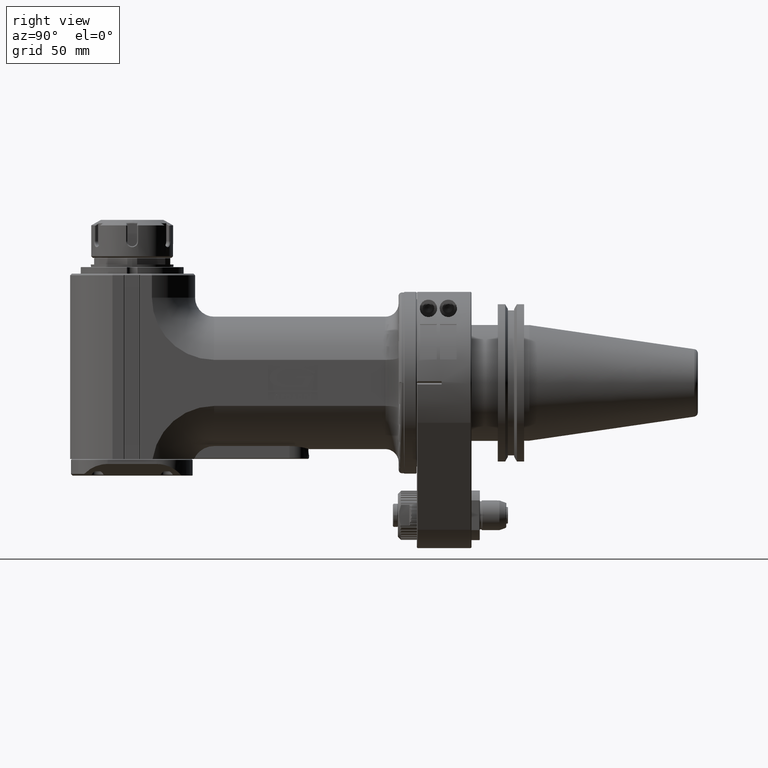
[diagram: clean part render]
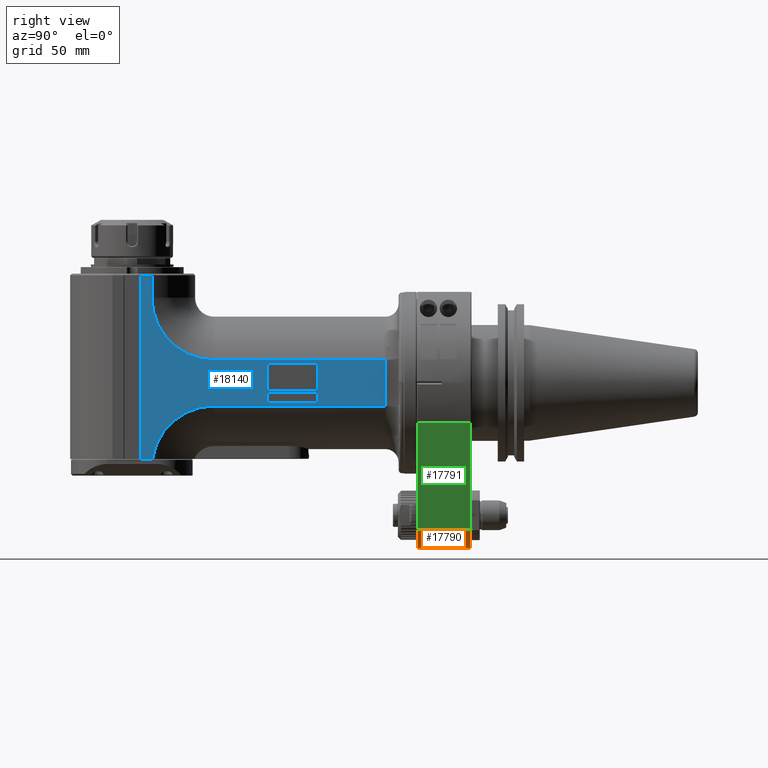
[diagram: same view with three faces highlighted in distinct colors, each labeled with its STEP entity id]
A machine part, right view with three faces highlighted in distinct colors.
Their STEP definitions:

[orange] entity #17790 — the highlighted cylindrical surface (edge-blend (fillet) strip) has radius 20 mm, axis along (0, 1, 0).
#1010=CIRCLE('',#18882,20.);
#1159=CIRCLE('',#19192,20.);
#1713=CYLINDRICAL_SURFACE('',#19193,20.);
#2070=FACE_OUTER_BOUND('',#3133,.T.);
#3133=EDGE_LOOP('',(#12838,#12839,#12840,#12841));
#4292=LINE('',#26706,#5786);
#4479=LINE('',#28212,#5973);
#5786=VECTOR('',#21224,31.9997523659797);
#5973=VECTOR('',#21961,31.9997524776297);
#7400=VERTEX_POINT('',#26572);
#7401=VERTEX_POINT('',#26576);
#7440=VERTEX_POINT('',#26704);
#7666=VERTEX_POINT('',#28208);
#9207=EDGE_CURVE('',#7401,#7400,#1010,.T.);
#9263=EDGE_CURVE('',#7440,#7400,#4292,.T.);
#9632=EDGE_CURVE('',#7440,#7666,#1159,.T.);
#9633=EDGE_CURVE('',#7401,#7666,#4479,.T.);
#12838=ORIENTED_EDGE('',*,*,#9632,.T.);
#12839=ORIENTED_EDGE('',*,*,#9633,.F.);
#12840=ORIENTED_EDGE('',*,*,#9207,.T.);
#12841=ORIENTED_EDGE('',*,*,#9263,.F.);
#17790=ADVANCED_FACE('',(#2070),#1713,.T.);
#18882=AXIS2_PLACEMENT_3D('',#26577,#21124,#21125);
#19192=AXIS2_PLACEMENT_3D('',#28210,#21957,#21958);
#19193=AXIS2_PLACEMENT_3D('',#28211,#21959,#21960);
#21124=DIRECTION('center_axis',(0.,1.,0.));
#21125=DIRECTION('ref_axis',(1.,0.,0.));
#21224=DIRECTION('',(3.81080393947804E-7,-0.99999999999991,1.85405221315602E-7));
#21957=DIRECTION('center_axis',(0.,-1.,0.));
#21958=DIRECTION('ref_axis',(1.,0.,0.));
#21959=DIRECTION('center_axis',(0.,1.,0.));
#21960=DIRECTION('ref_axis',(1.,0.,0.));
#21961=DIRECTION('',(-3.82438699266904E-7,0.99999999999991,1.86079929291902E-7));
#26572=CARTESIAN_POINT('',(-17.9843328943923,0.500151595690337,-88.7499827273196));
#26576=CARTESIAN_POINT('',(17.9843682449328,0.500170512042425,-88.7499999331764));
#26577=CARTESIAN_POINT('Origin',(0.,0.500341024091354,-80.));
#26704=CARTESIAN_POINT('',(-17.9843682475779,32.4998292651373,-88.7499999277408));
#26706=CARTESIAN_POINT('',(-17.98435747667,32.49985520783,-88.74999468733));
#28208=CARTESIAN_POINT('',(17.9843685923995,32.4998283294068,-88.7500001053328));
#28210=CARTESIAN_POINT('Origin',(0.,32.499658530269,-80.));
#28211=CARTESIAN_POINT('Origin',(0.,0.,-80.));
#28212=CARTESIAN_POINT('',(17.98435748801,0.5001435280147,-88.74999469957));

[blue] entity #18140 — the highlighted planar face has unit normal (1, 0, -0).
#191=FACE_BOUND('',#3516,.T.);
#192=FACE_BOUND('',#3517,.T.);
#1356=CIRCLE('',#19755,37.58058909292);
#1357=CIRCLE('',#19757,37.58058909292);
#2420=FACE_OUTER_BOUND('',#3515,.T.);
#3515=EDGE_LOOP('',(#14497,#14498,#14499,#14500,#14501,#14502,#14503,#14504,
#14505));
#3516=EDGE_LOOP('',(#14506,#14507,#14508,#14509));
#3517=EDGE_LOOP('',(#14510,#14511,#14512,#14513));
#4771=LINE('',#29388,#6265);
#4795=LINE('',#29801,#6289);
#4802=LINE('',#29822,#6296);
#4807=LINE('',#29949,#6301);
#4925=LINE('',#30767,#6419);
#4926=LINE('',#30769,#6420);
#4927=LINE('',#30772,#6421);
#4928=LINE('',#30775,#6422);
#4929=LINE('',#30777,#6423);
#4930=LINE('',#30779,#6424);
#4931=LINE('',#30780,#6425);
#4932=LINE('',#30783,#6426);
#4933=LINE('',#30785,#6427);
#4934=LINE('',#30787,#6428);
#4935=LINE('',#30788,#6429);
#6265=VECTOR('',#22939,103.5);
#6289=VECTOR('',#23011,10.);
#6296=VECTOR('',#23020,111.);
#6301=VECTOR('',#23043,7.324057825372);
#6419=VECTOR('',#23533,27.83882181415);
#6420=VECTOR('',#23534,103.5);
#6421=VECTOR('',#23537,13.4999981228601);
#6422=VECTOR('',#23538,16.51976851128);
#6423=VECTOR('',#23539,30.01663922375);
#6424=VECTOR('',#23540,16.51976851128);
#6425=VECTOR('',#23541,30.01663922375);
#6426=VECTOR('',#23542,6.349203301807);
#6427=VECTOR('',#23543,30.04358740776);
#6428=VECTOR('',#23544,6.349203301807);
#6429=VECTOR('',#23545,30.04358740776);
#7846=VERTEX_POINT('',#29385);
#7847=VERTEX_POINT('',#29387);
#7865=VERTEX_POINT('',#29752);
#7885=VERTEX_POINT('',#29798);
#7892=VERTEX_POINT('',#29819);
#7906=VERTEX_POINT('',#29848);
#8057=VERTEX_POINT('',#30766);
#8058=VERTEX_POINT('',#30768);
#8059=VERTEX_POINT('',#30770);
#8060=VERTEX_POINT('',#30773);
#8061=VERTEX_POINT('',#30774);
#8062=VERTEX_POINT('',#30776);
#8063=VERTEX_POINT('',#30778);
#8064=VERTEX_POINT('',#30781);
#8065=VERTEX_POINT('',#30782);
#8066=VERTEX_POINT('',#30784);
#8067=VERTEX_POINT('',#30786);
#10038=EDGE_CURVE('',#7846,#7847,#4771,.T.);
#10084=EDGE_CURVE('',#7885,#7865,#4795,.T.);
#10092=EDGE_CURVE('',#7892,#7885,#4802,.T.);
#10106=EDGE_CURVE('',#7906,#7892,#4807,.T.);
#10341=EDGE_CURVE('',#7847,#7906,#1356,.T.);
#10342=EDGE_CURVE('',#7846,#8057,#4925,.T.);
#10343=EDGE_CURVE('',#8057,#8058,#4926,.T.);
#10344=EDGE_CURVE('',#8058,#8059,#1357,.T.);
#10345=EDGE_CURVE('',#8059,#7865,#4927,.T.);
#10346=EDGE_CURVE('',#8060,#8061,#4928,.T.);
#10347=EDGE_CURVE('',#8062,#8060,#4929,.T.);
#10348=EDGE_CURVE('',#8063,#8062,#4930,.T.);
#10349=EDGE_CURVE('',#8061,#8063,#4931,.T.);
#10350=EDGE_CURVE('',#8064,#8065,#4932,.T.);
#10351=EDGE_CURVE('',#8066,#8064,#4933,.T.);
#10352=EDGE_CURVE('',#8067,#8066,#4934,.T.);
#10353=EDGE_CURVE('',#8065,#8067,#4935,.T.);
#14497=ORIENTED_EDGE('',*,*,#10092,.F.);
#14498=ORIENTED_EDGE('',*,*,#10106,.F.);
#14499=ORIENTED_EDGE('',*,*,#10341,.F.);
#14500=ORIENTED_EDGE('',*,*,#10038,.F.);
#14501=ORIENTED_EDGE('',*,*,#10342,.T.);
#14502=ORIENTED_EDGE('',*,*,#10343,.T.);
#14503=ORIENTED_EDGE('',*,*,#10344,.T.);
#14504=ORIENTED_EDGE('',*,*,#10345,.T.);
#14505=ORIENTED_EDGE('',*,*,#10084,.F.);
#14506=ORIENTED_EDGE('',*,*,#10346,.F.);
#14507=ORIENTED_EDGE('',*,*,#10347,.F.);
#14508=ORIENTED_EDGE('',*,*,#10348,.F.);
#14509=ORIENTED_EDGE('',*,*,#10349,.F.);
#14510=ORIENTED_EDGE('',*,*,#10350,.F.);
#14511=ORIENTED_EDGE('',*,*,#10351,.F.);
#14512=ORIENTED_EDGE('',*,*,#10352,.F.);
#14513=ORIENTED_EDGE('',*,*,#10353,.F.);
#17359=PLANE('',#19756);
#18140=ADVANCED_FACE('',(#2420,#191,#192),#17359,.T.);
#19755=AXIS2_PLACEMENT_3D('',#30764,#23529,#23530);
#19756=AXIS2_PLACEMENT_3D('',#30765,#23531,#23532);
#19757=AXIS2_PLACEMENT_3D('',#30771,#23535,#23536);
#22939=DIRECTION('',(0.,1.,0.));
#23011=DIRECTION('',(0.,-1.,0.));
#23020=DIRECTION('',(0.,0.,1.));
#23043=DIRECTION('',(0.,1.,0.));
#23529=DIRECTION('center_axis',(-1.,0.,0.));
#23530=DIRECTION('ref_axis',(0.,1.210059133884E-14,1.));
#23531=DIRECTION('center_axis',(-1.,0.,0.));
#23532=DIRECTION('ref_axis',(0.,-1.,0.));
#23533=DIRECTION('',(0.,0.,1.));
#23534=DIRECTION('',(0.,1.,0.));
#23535=DIRECTION('center_axis',(1.,0.,0.));
#23536=DIRECTION('ref_axis',(0.,0.,-1.));
#23537=DIRECTION('',(1.30358121104699E-7,4.83867670055795E-8,0.99999999999999));
#23538=DIRECTION('',(0.,0.,-1.));
#23539=DIRECTION('',(0.,1.,0.));
#23540=DIRECTION('',(0.,0.,1.));
#23541=DIRECTION('',(0.,-1.,0.));
#23542=DIRECTION('',(0.,0.,-1.));
#23543=DIRECTION('',(0.,1.,0.));
#23544=DIRECTION('',(0.,0.,1.));
#23545=DIRECTION('',(0.,-1.,0.));
#29385=CARTESIAN_POINT('',(-37.5,19.,-13.91941090708));
#29387=CARTESIAN_POINT('',(-37.5,122.5,-13.91941090708));
#29388=CARTESIAN_POINT('',(-37.5,19.,-13.91941090708));
#29752=CARTESIAN_POINT('',(-37.5000031227518,160.080609618412,64.9999926020199));
#29798=CARTESIAN_POINT('',(-37.5,167.,65.));
#29801=CARTESIAN_POINT('',(-37.5,181.0065,65.));
#29819=CARTESIAN_POINT('',(-37.5,167.,-46.));
#29822=CARTESIAN_POINT('',(-37.5,167.,-46.));
#29848=CARTESIAN_POINT('',(-37.5,159.6759421746,-46.));
#29949=CARTESIAN_POINT('',(-37.5,159.6759421746,-46.));
#30764=CARTESIAN_POINT('Origin',(-37.5,122.5,-51.5));
#30765=CARTESIAN_POINT('Origin',(-37.5,190.013,-67.1));
#30766=CARTESIAN_POINT('',(-37.5,19.,13.91941090708));
#30767=CARTESIAN_POINT('',(-37.5,19.,-13.91941090708));
#30768=CARTESIAN_POINT('',(-37.5,122.5,13.91941090708));
#30769=CARTESIAN_POINT('',(-37.5,19.,13.91941090708));
#30770=CARTESIAN_POINT('',(-37.5,160.0805890929,51.5));
#30771=CARTESIAN_POINT('Origin',(-37.5,122.5,51.5));
#30772=CARTESIAN_POINT('',(-37.5,160.0805890929,51.5));
#30773=CARTESIAN_POINT('',(-37.5,90.01663922375,11.90006998381));
#30774=CARTESIAN_POINT('',(-37.5,90.01663922375,-4.619698527469));
#30775=CARTESIAN_POINT('',(-37.5,90.01663922375,11.90006998381));
#30776=CARTESIAN_POINT('',(-37.5,60.,11.90006998381));
#30777=CARTESIAN_POINT('',(-37.5,60.,11.90006998381));
#30778=CARTESIAN_POINT('',(-37.5,60.,-4.619698527469));
#30779=CARTESIAN_POINT('',(-37.5,60.,-4.619698527469));
#30780=CARTESIAN_POINT('',(-37.5,90.01663922375,-4.619698527469));
#30781=CARTESIAN_POINT('',(-37.5,90.05832711313,-5.750796698193));
#30782=CARTESIAN_POINT('',(-37.5,90.05832711313,-12.1));
#30783=CARTESIAN_POINT('',(-37.5,90.05832711313,-5.750796698193));
#30784=CARTESIAN_POINT('',(-37.5,60.01473970537,-5.750796698193));
#30785=CARTESIAN_POINT('',(-37.5,60.01473970537,-5.750796698193));
#30786=CARTESIAN_POINT('',(-37.5,60.01473970537,-12.1));
#30787=CARTESIAN_POINT('',(-37.5,60.01473970537,-12.1));
#30788=CARTESIAN_POINT('',(-37.5,90.05832711313,-12.1));

[green] entity #17791 — the highlighted planar face has unit normal (0.8992, 0, -0.4375).
#2071=FACE_OUTER_BOUND('',#3134,.T.);
#3134=EDGE_LOOP('',(#12842,#12843,#12844,#12845));
#4267=LINE('',#26581,#5761);
#4479=LINE('',#28212,#5973);
#4480=LINE('',#28215,#5974);
#4481=LINE('',#28216,#5975);
#5761=VECTOR('',#21129,10.);
#5973=VECTOR('',#21961,31.9997524776297);
#5974=VECTOR('',#21964,10.);
#5975=VECTOR('',#21965,31.9997413815);
#7401=VERTEX_POINT('',#26576);
#7402=VERTEX_POINT('',#26580);
#7666=VERTEX_POINT('',#28208);
#7667=VERTEX_POINT('',#28214);
#9209=EDGE_CURVE('',#7402,#7401,#4267,.T.);
#9633=EDGE_CURVE('',#7401,#7666,#4479,.T.);
#9634=EDGE_CURVE('',#7666,#7667,#4480,.T.);
#9635=EDGE_CURVE('',#7667,#7402,#4481,.T.);
#12842=ORIENTED_EDGE('',*,*,#9634,.T.);
#12843=ORIENTED_EDGE('',*,*,#9635,.T.);
#12844=ORIENTED_EDGE('',*,*,#9209,.T.);
#12845=ORIENTED_EDGE('',*,*,#9633,.T.);
#17152=PLANE('',#19194);
#17791=ADVANCED_FACE('',(#2071),#17152,.T.);
#19194=AXIS2_PLACEMENT_3D('',#28213,#21962,#21963);
#21129=DIRECTION('',(-0.437500000000014,-3.75252097625435E-14,-0.899218410621128));
#21961=DIRECTION('',(-3.82438699266904E-7,0.99999999999991,1.86079929291902E-7));
#21962=DIRECTION('center_axis',(0.899218410621128,0.,-0.437500000000014));
#21963=DIRECTION('ref_axis',(-0.437500000000014,0.,-0.899218410621128));
#21964=DIRECTION('',(0.437500000000014,-3.75252097625435E-14,0.899218410621128));
#21965=DIRECTION('',(7.424987347099E-11,-1.,1.503411777327E-10));
#26576=CARTESIAN_POINT('',(17.9843682449328,0.500170512042425,-88.7499999331764));
#26580=CARTESIAN_POINT('',(49.4570126806822,0.500103484141412,-24.0625000925985));
#26581=CARTESIAN_POINT('',(41.5888514912253,0.499999999995519,-40.2343749999989));
#28208=CARTESIAN_POINT('',(17.9843685923995,32.4998283294068,-88.7500001053328));
#28212=CARTESIAN_POINT('',(17.98435748801,0.5001435280147,-88.74999469957));
#28213=CARTESIAN_POINT('Origin',(49.45701258416,0.,-24.0625));
#28214=CARTESIAN_POINT('',(49.4570126926282,32.4998623897335,-24.0625001043884));
#28215=CARTESIAN_POINT('',(41.5888514912256,32.5000000000045,-40.2343749999983));
#28216=CARTESIAN_POINT('',(49.45701256376,32.49985311079,-24.06250004169));